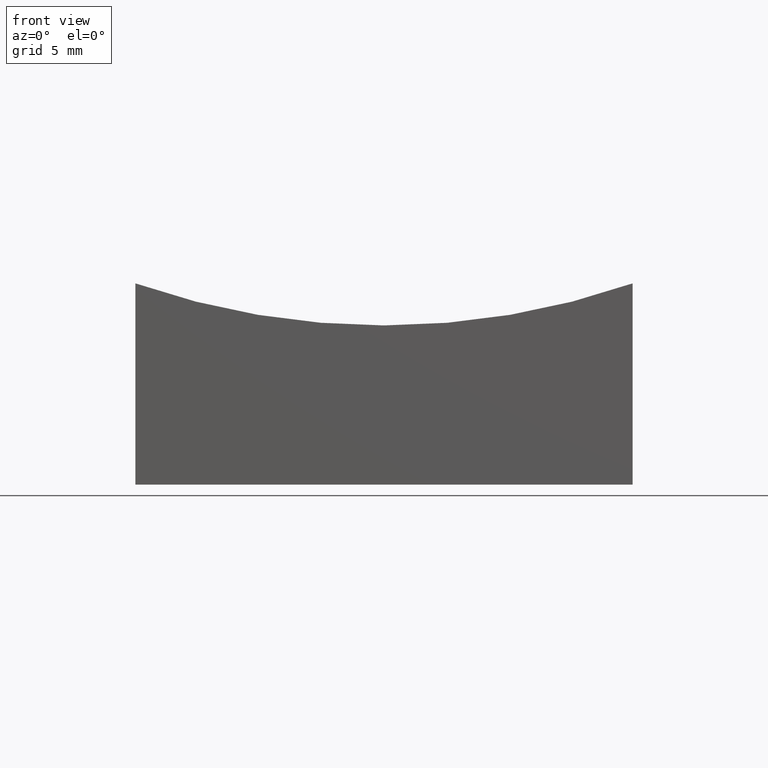
[diagram: clean part render]
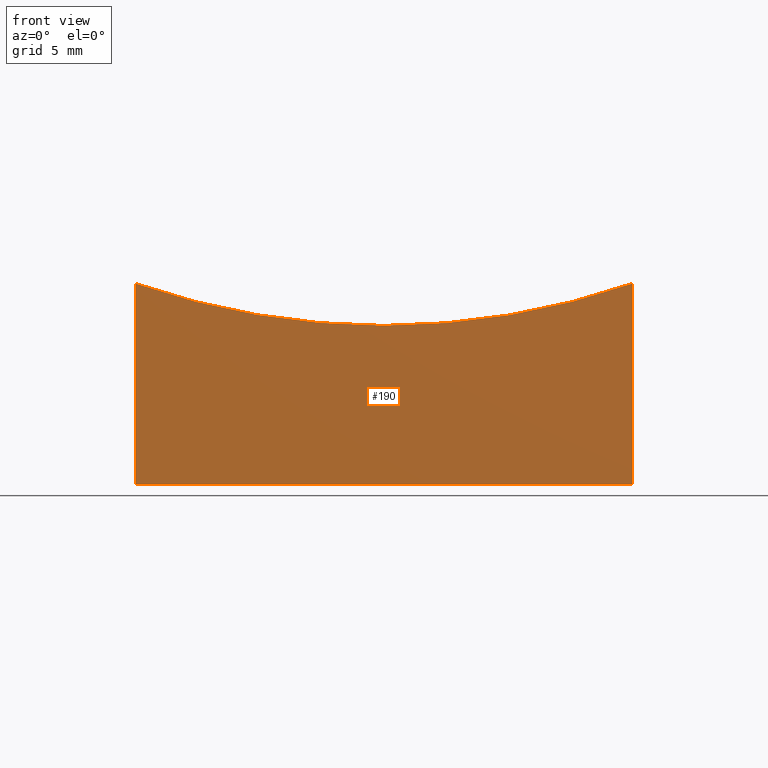
[diagram: same view with one face highlighted and labeled with its STEP entity id]
A machine part, front view. The second image highlights one B-rep face of the part: STEP entity #190.
In plain terms, the highlighted planar face has unit normal (0, 1, 0).
Its self-contained STEP definition (entity closure, byte-faithful):
#2 = ORIENTED_EDGE ( 'NONE', *, *, #120, .T. ) ;
#5 = AXIS2_PLACEMENT_3D ( 'NONE', #14, #232, #54 ) ;
#14 = CARTESIAN_POINT ( 'NONE',  ( -12.49999999999999645, -12.50000000000000000, 20.00000000000000000 ) ) ;
#22 = CIRCLE ( 'NONE', #63, 37.99671038392666844 ) ;
#28 = ORIENTED_EDGE ( 'NONE', *, *, #56, .F. ) ;
#30 = CARTESIAN_POINT ( 'NONE',  ( 12.50000000000000355, -12.50000000000000000, 20.00000000000000000 ) ) ;
#37 = EDGE_CURVE ( 'NONE', #132, #81, #22, .T. ) ;
#41 = CARTESIAN_POINT ( 'NONE',  ( -12.49999999999999645, -12.50000000000000000, 0.0000000000000000000 ) ) ;
#50 = DIRECTION ( 'NONE',  ( 0.0000000000000000000, 0.0000000000000000000, 1.000000000000000000 ) ) ;
#54 = DIRECTION ( 'NONE',  ( 0.0000000000000000000, -0.0000000000000000000, 1.000000000000000000 ) ) ;
#56 = EDGE_CURVE ( 'NONE', #132, #216, #127, .T. ) ;
#63 = AXIS2_PLACEMENT_3D ( 'NONE', #124, #121, #50 ) ;
#74 = CARTESIAN_POINT ( 'NONE',  ( 12.50000000000000355, -12.50000000000000000, 10.11824976398168552 ) ) ;
#79 = VECTOR ( 'NONE', #97, 1000.000000000000000 ) ;
#81 = VERTEX_POINT ( 'NONE', #228 ) ;
#97 = DIRECTION ( 'NONE',  ( 1.000000000000000000, 0.0000000000000000000, 0.0000000000000000000 ) ) ;
#108 = VECTOR ( 'NONE', #178, 1000.000000000000000 ) ;
#113 = VERTEX_POINT ( 'NONE', #168 ) ;
#117 = ORIENTED_EDGE ( 'NONE', *, *, #37, .T. ) ;
#120 = EDGE_CURVE ( 'NONE', #81, #113, #189, .T. ) ;
#121 = DIRECTION ( 'NONE',  ( 0.0000000000000000000, 1.000000000000000000, 0.0000000000000000000 ) ) ;
#124 = CARTESIAN_POINT ( 'NONE',  ( 5.633375276077824704E-15, -12.50000000000000000, 46.00000000000000000 ) ) ;
#127 = LINE ( 'NONE', #30, #108 ) ;
#132 = VERTEX_POINT ( 'NONE', #74 ) ;
#141 = LINE ( 'NONE', #41, #79 ) ;
#168 = CARTESIAN_POINT ( 'NONE',  ( -12.49999999999999645, -12.50000000000000000, 0.0000000000000000000 ) ) ;
#172 = CARTESIAN_POINT ( 'NONE',  ( -12.49999999999999645, -12.50000000000000000, 20.00000000000000000 ) ) ;
#173 = PLANE ( 'NONE',  #5 ) ;
#177 = CARTESIAN_POINT ( 'NONE',  ( 12.50000000000000355, -12.50000000000000000, 0.0000000000000000000 ) ) ;
#178 = DIRECTION ( 'NONE',  ( -0.0000000000000000000, -0.0000000000000000000, -1.000000000000000000 ) ) ;
#181 = VECTOR ( 'NONE', #214, 1000.000000000000000 ) ;
#189 = LINE ( 'NONE', #172, #181 ) ;
#190 = ADVANCED_FACE ( 'NONE', ( #249 ), #173, .F. ) ;
#214 = DIRECTION ( 'NONE',  ( -0.0000000000000000000, -0.0000000000000000000, -1.000000000000000000 ) ) ;
#216 = VERTEX_POINT ( 'NONE', #177 ) ;
#219 = EDGE_CURVE ( 'NONE', #113, #216, #141, .T. ) ;
#228 = CARTESIAN_POINT ( 'NONE',  ( -12.49999999999999645, -12.50000000000000000, 10.11824976398168552 ) ) ;
#232 = DIRECTION ( 'NONE',  ( 0.0000000000000000000, 1.000000000000000000, 0.0000000000000000000 ) ) ;
#239 = EDGE_LOOP ( 'NONE', ( #28, #117, #2, #241 ) ) ;
#241 = ORIENTED_EDGE ( 'NONE', *, *, #219, .T. ) ;
#249 = FACE_OUTER_BOUND ( 'NONE', #239, .T. ) ;